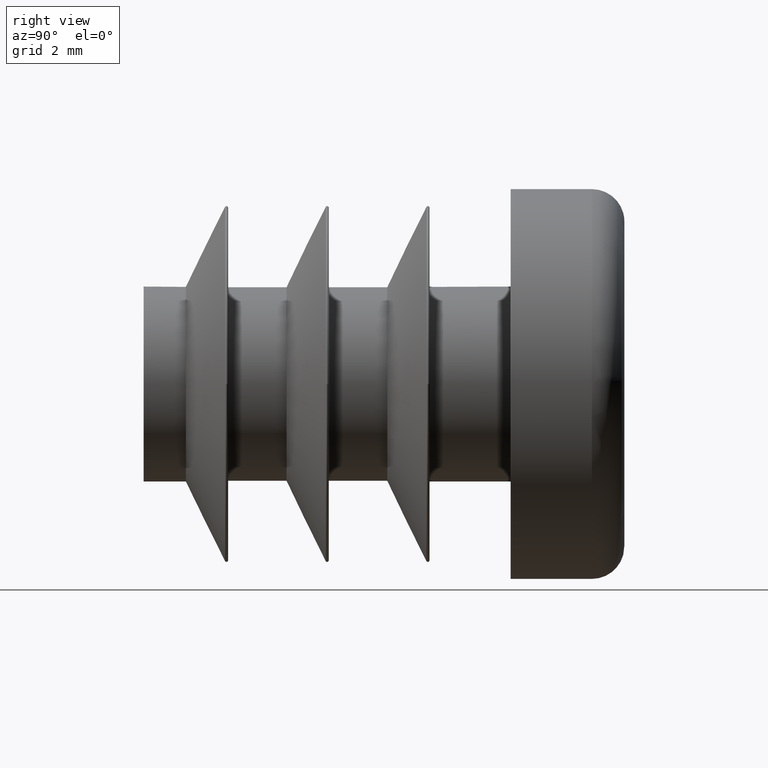
[diagram: clean part render]
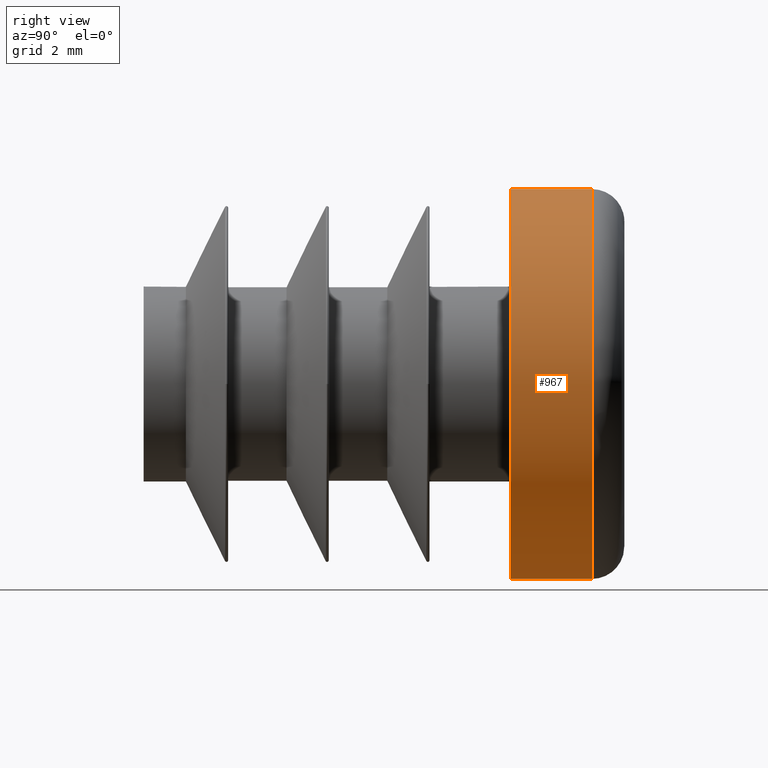
[diagram: same view with one face highlighted and labeled with its STEP entity id]
A machine part, right view. The second image highlights one B-rep face of the part: STEP entity #967.
In plain terms, the highlighted cylindrical surface (bore or boss wall) has radius 6 mm, axis along (-0, -1, -0).
Its self-contained STEP definition (entity closure, byte-faithful):
#515 = CIRCLE ( 'NONE', #1336, 5.999999999999998224 ) ;
#967 = ADVANCED_FACE ( 'NONE', ( #3459, #2623 ), #3926, .T. ) ;
#1124 = DIRECTION ( 'NONE',  ( -0.000000000000000000, -1.000000000000000000, -0.000000000000000000 ) ) ;
#1336 = AXIS2_PLACEMENT_3D ( 'NONE', #7984, #1124, #9468 ) ;
#1866 = EDGE_CURVE ( 'NONE', #6635, #6635, #4381, .T. ) ;
#2131 = VERTEX_POINT ( 'NONE', #5213 ) ;
#2137 = CARTESIAN_POINT ( 'NONE',  ( 0.000000000000000000, 13.79999999999999716, 0.000000000000000000 ) ) ;
#2623 = FACE_OUTER_BOUND ( 'NONE', #7686, .T. ) ;
#3085 = AXIS2_PLACEMENT_3D ( 'NONE', #2137, #7439, #4330 ) ;
#3135 = DIRECTION ( 'NONE',  ( -0.000000000000000000, -1.000000000000000000, -0.000000000000000000 ) ) ;
#3379 = EDGE_LOOP ( 'NONE', ( #8183 ) ) ;
#3459 = FACE_OUTER_BOUND ( 'NONE', #3379, .T. ) ;
#3926 = CYLINDRICAL_SURFACE ( 'NONE', #7771, 5.999999999999998224 ) ;
#3961 = DIRECTION ( 'NONE',  ( 0.000000000000000000, 0.000000000000000000, -1.000000000000000000 ) ) ;
#4154 = EDGE_CURVE ( 'NONE', #2131, #2131, #515, .T. ) ;
#4330 = DIRECTION ( 'NONE',  ( 0.000000000000000000, 0.000000000000000000, 1.000000000000000000 ) ) ;
#4381 = CIRCLE ( 'NONE', #3085, 5.999999999999998224 ) ;
#4427 = CARTESIAN_POINT ( 'NONE',  ( 0.000000000000000000, 13.79999999999999716, 5.999999999999998224 ) ) ;
#5213 = CARTESIAN_POINT ( 'NONE',  ( 0.000000000000000000, 11.29999999999999893, -5.999999999999998224 ) ) ;
#6635 = VERTEX_POINT ( 'NONE', #4427 ) ;
#7439 = DIRECTION ( 'NONE',  ( -0.000000000000000000, -1.000000000000000000, -0.000000000000000000 ) ) ;
#7686 = EDGE_LOOP ( 'NONE', ( #7869 ) ) ;
#7771 = AXIS2_PLACEMENT_3D ( 'NONE', #8239, #3135, #3961 ) ;
#7869 = ORIENTED_EDGE ( 'NONE', *, *, #4154, .F. ) ;
#7984 = CARTESIAN_POINT ( 'NONE',  ( 0.000000000000000000, 11.29999999999999893, 0.000000000000000000 ) ) ;
#8183 = ORIENTED_EDGE ( 'NONE', *, *, #1866, .T. ) ;
#8239 = CARTESIAN_POINT ( 'NONE',  ( 0.000000000000000000, 11.29999999999999716, 0.000000000000000000 ) ) ;
#9468 = DIRECTION ( 'NONE',  ( 0.000000000000000000, 0.000000000000000000, -1.000000000000000000 ) ) ;